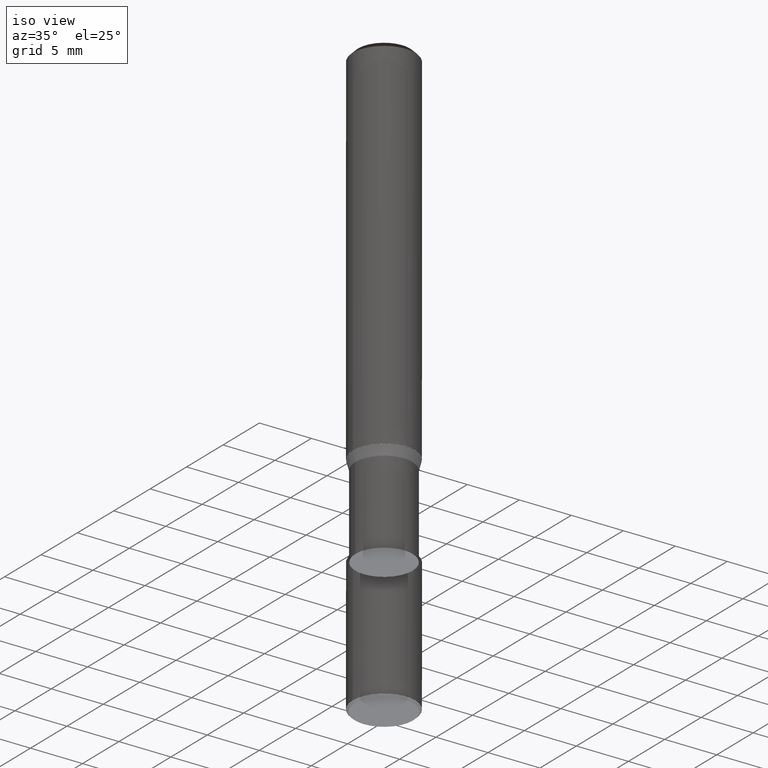
[diagram: clean part render]
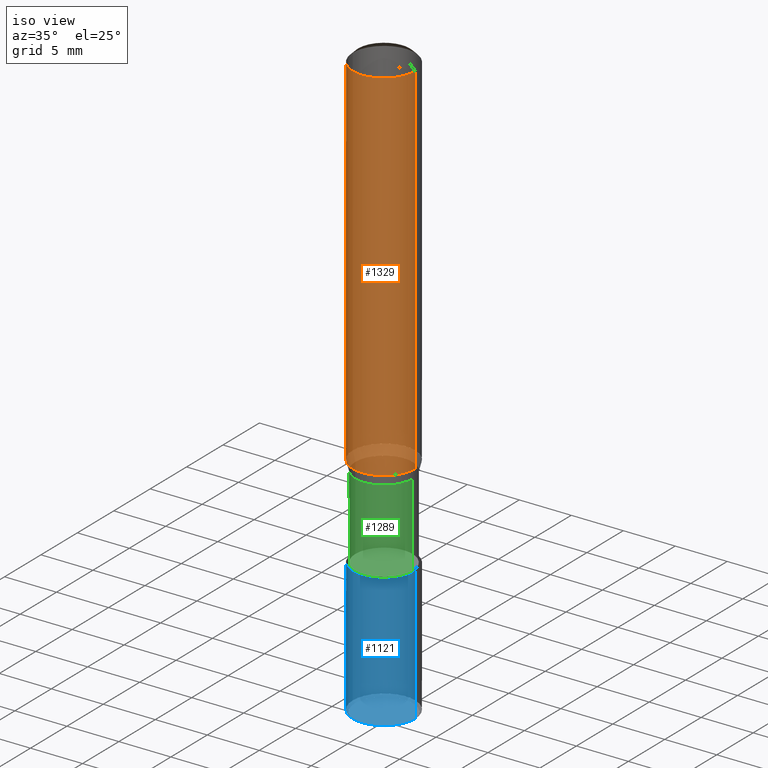
[diagram: same view with three faces highlighted in distinct colors, each labeled with its STEP entity id]
A machine part, iso view with three faces highlighted in distinct colors.
Their STEP definitions:

[orange] entity #1329 — the highlighted face is a freeform B-spline surface patch.
#956=CARTESIAN_POINT('',(3.0,0.0,0.0));
#960=CARTESIAN_POINT('',(-3.0,0.0,0.0));
#961=CARTESIAN_POINT('',(3.0,0.0,34.56699011));
#965=CARTESIAN_POINT('',(-3.0,0.0,34.56699011));
#978=CARTESIAN_POINT('',(-3.0,-3.0,0.0));
#979=CARTESIAN_POINT('',(0.0,-3.0,0.0));
#980=CARTESIAN_POINT('',(3.0,-3.0,0.0));
#981=CARTESIAN_POINT('',(-3.0,-3.0,34.56699011));
#982=CARTESIAN_POINT('',(0.0,-3.0,34.56699011));
#983=CARTESIAN_POINT('',(3.0,-3.0,34.56699011));
#1310=(
BOUNDED_SURFACE()
B_SPLINE_SURFACE(1,2,(
(#960,#978,#979,#980,#956),
(#965,#981,#982,#983,#961)
), .UNSPECIFIED.,.F.,.F.,.F.)
B_SPLINE_SURFACE_WITH_KNOTS((2,2),(3,2,3),(
0.0,1.0),(
0.0,0.5,1.0), .UNSPECIFIED.)
GEOMETRIC_REPRESENTATION_ITEM()
RATIONAL_B_SPLINE_SURFACE(((1.0,0.707106781187,1.0,0.707106781187,1.0),
(1.0,0.707106781187,1.0,0.707106781187,1.0)
))
REPRESENTATION_ITEM('')
SURFACE()
);
#1311=(
BOUNDED_CURVE()
B_SPLINE_CURVE(1,(#965,#960),.UNSPECIFIED.,.F.,.F.)
B_SPLINE_CURVE_WITH_KNOTS((2,2),
(0.0,1.0),.UNSPECIFIED.)
CURVE()
GEOMETRIC_REPRESENTATION_ITEM()
RATIONAL_B_SPLINE_CURVE((1.0,1.0))
REPRESENTATION_ITEM('')
);
#1312=(
BOUNDED_CURVE()
B_SPLINE_CURVE(2,(#960,#978,#979,#980,#956),.UNSPECIFIED.,.F.,.F.)
B_SPLINE_CURVE_WITH_KNOTS((3,2,3),
(0.0,0.5,1.0),.UNSPECIFIED.)
CURVE()
GEOMETRIC_REPRESENTATION_ITEM()
RATIONAL_B_SPLINE_CURVE((1.0,0.707106781187,1.0,0.707106781187,1.0))
REPRESENTATION_ITEM('')
);
#1313=(
BOUNDED_CURVE()
B_SPLINE_CURVE(1,(#956,#961),.UNSPECIFIED.,.F.,.F.)
B_SPLINE_CURVE_WITH_KNOTS((2,2),
(0.0,1.0),.UNSPECIFIED.)
CURVE()
GEOMETRIC_REPRESENTATION_ITEM()
RATIONAL_B_SPLINE_CURVE((1.0,1.0))
REPRESENTATION_ITEM('')
);
#1314=(
BOUNDED_CURVE()
B_SPLINE_CURVE(2,(#961,#983,#982,#981,#965),.UNSPECIFIED.,.F.,.F.)
B_SPLINE_CURVE_WITH_KNOTS((3,2,3),
(0.0,0.5,1.0),.UNSPECIFIED.)
CURVE()
GEOMETRIC_REPRESENTATION_ITEM()
RATIONAL_B_SPLINE_CURVE((1.0,0.707106781187,1.0,0.707106781187,1.0))
REPRESENTATION_ITEM('')
);
#1315=VERTEX_POINT('',#956);
#1316=VERTEX_POINT('',#960);
#1317=VERTEX_POINT('',#961);
#1318=VERTEX_POINT('',#965);
#1319=EDGE_CURVE('',#1318,#1316,#1311,.T.);
#1320=EDGE_CURVE('',#1316,#1315,#1312,.T.);
#1321=EDGE_CURVE('',#1315,#1317,#1313,.T.);
#1322=EDGE_CURVE('',#1317,#1318,#1314,.T.);
#1323=ORIENTED_EDGE('',*,*,#1319,.T.);
#1324=ORIENTED_EDGE('',*,*,#1320,.T.);
#1325=ORIENTED_EDGE('',*,*,#1321,.T.);
#1326=ORIENTED_EDGE('',*,*,#1322,.T.);
#1327=EDGE_LOOP('',(#1323,#1324,#1325,#1326));
#1328=FACE_OUTER_BOUND('',#1327,.T.);
#1329=ADVANCED_FACE('',(#1328),#1310,.T.);

[blue] entity #1121 — the highlighted face is a freeform B-spline surface patch.
#926=CARTESIAN_POINT('',(3.0,0.0,-21.73300989));
#930=CARTESIAN_POINT('',(-3.0,0.0,-21.73300989));
#931=CARTESIAN_POINT('',(3.0,0.0,-8.93300989));
#935=CARTESIAN_POINT('',(-3.0,0.0,-8.93300989));
#940=CARTESIAN_POINT('',(-3.0,-3.0,-21.73300989));
#941=CARTESIAN_POINT('',(0.0,-3.0,-21.73300989));
#942=CARTESIAN_POINT('',(3.0,-3.0,-21.73300989));
#943=CARTESIAN_POINT('',(-3.0,-3.0,-8.93300989));
#944=CARTESIAN_POINT('',(0.0,-3.0,-8.93300989));
#945=CARTESIAN_POINT('',(3.0,-3.0,-8.93300989));
#1102=(
BOUNDED_SURFACE()
B_SPLINE_SURFACE(1,2,(
(#930,#940,#941,#942,#926),
(#935,#943,#944,#945,#931)
), .UNSPECIFIED.,.F.,.F.,.F.)
B_SPLINE_SURFACE_WITH_KNOTS((2,2),(3,2,3),(
0.0,1.0),(
0.0,0.5,1.0), .UNSPECIFIED.)
GEOMETRIC_REPRESENTATION_ITEM()
RATIONAL_B_SPLINE_SURFACE(((1.0,0.707106781187,1.0,0.707106781187,1.0),
(1.0,0.707106781187,1.0,0.707106781187,1.0)
))
REPRESENTATION_ITEM('')
SURFACE()
);
#1103=(
BOUNDED_CURVE()
B_SPLINE_CURVE(1,(#935,#930),.UNSPECIFIED.,.F.,.F.)
B_SPLINE_CURVE_WITH_KNOTS((2,2),
(0.0,1.0),.UNSPECIFIED.)
CURVE()
GEOMETRIC_REPRESENTATION_ITEM()
RATIONAL_B_SPLINE_CURVE((1.0,1.0))
REPRESENTATION_ITEM('')
);
#1104=(
BOUNDED_CURVE()
B_SPLINE_CURVE(2,(#930,#940,#941,#942,#926),.UNSPECIFIED.,.F.,.F.)
B_SPLINE_CURVE_WITH_KNOTS((3,2,3),
(0.0,0.5,1.0),.UNSPECIFIED.)
CURVE()
GEOMETRIC_REPRESENTATION_ITEM()
RATIONAL_B_SPLINE_CURVE((1.0,0.707106781187,1.0,0.707106781187,1.0))
REPRESENTATION_ITEM('')
);
#1105=(
BOUNDED_CURVE()
B_SPLINE_CURVE(1,(#926,#931),.UNSPECIFIED.,.F.,.F.)
B_SPLINE_CURVE_WITH_KNOTS((2,2),
(0.0,1.0),.UNSPECIFIED.)
CURVE()
GEOMETRIC_REPRESENTATION_ITEM()
RATIONAL_B_SPLINE_CURVE((1.0,1.0))
REPRESENTATION_ITEM('')
);
#1106=(
BOUNDED_CURVE()
B_SPLINE_CURVE(2,(#931,#945,#944,#943,#935),.UNSPECIFIED.,.F.,.F.)
B_SPLINE_CURVE_WITH_KNOTS((3,2,3),
(0.0,0.5,1.0),.UNSPECIFIED.)
CURVE()
GEOMETRIC_REPRESENTATION_ITEM()
RATIONAL_B_SPLINE_CURVE((1.0,0.707106781187,1.0,0.707106781187,1.0))
REPRESENTATION_ITEM('')
);
#1107=VERTEX_POINT('',#926);
#1108=VERTEX_POINT('',#930);
#1109=VERTEX_POINT('',#931);
#1110=VERTEX_POINT('',#935);
#1111=EDGE_CURVE('',#1110,#1108,#1103,.T.);
#1112=EDGE_CURVE('',#1108,#1107,#1104,.T.);
#1113=EDGE_CURVE('',#1107,#1109,#1105,.T.);
#1114=EDGE_CURVE('',#1109,#1110,#1106,.T.);
#1115=ORIENTED_EDGE('',*,*,#1111,.T.);
#1116=ORIENTED_EDGE('',*,*,#1112,.T.);
#1117=ORIENTED_EDGE('',*,*,#1113,.T.);
#1118=ORIENTED_EDGE('',*,*,#1114,.T.);
#1119=EDGE_LOOP('',(#1115,#1116,#1117,#1118));
#1120=FACE_OUTER_BOUND('',#1119,.T.);
#1121=ADVANCED_FACE('',(#1120),#1102,.T.);

[green] entity #1289 — the highlighted face is a freeform B-spline surface patch.
#946=CARTESIAN_POINT('',(2.75,0.0,-8.93300989));
#950=CARTESIAN_POINT('',(-2.75,0.0,-8.93300989));
#951=CARTESIAN_POINT('',(2.75,0.0,-0.93300989));
#955=CARTESIAN_POINT('',(-2.75,0.0,-0.93300989));
#972=CARTESIAN_POINT('',(-2.75,-2.75,-8.93300989));
#973=CARTESIAN_POINT('',(0.0,-2.75,-8.93300989));
#974=CARTESIAN_POINT('',(2.75,-2.75,-8.93300989));
#975=CARTESIAN_POINT('',(-2.75,-2.75,-0.93300989));
#976=CARTESIAN_POINT('',(0.0,-2.75,-0.93300989));
#977=CARTESIAN_POINT('',(2.75,-2.75,-0.93300989));
#1270=(
BOUNDED_SURFACE()
B_SPLINE_SURFACE(1,2,(
(#950,#972,#973,#974,#946),
(#955,#975,#976,#977,#951)
), .UNSPECIFIED.,.F.,.F.,.F.)
B_SPLINE_SURFACE_WITH_KNOTS((2,2),(3,2,3),(
0.0,1.0),(
0.0,0.5,1.0), .UNSPECIFIED.)
GEOMETRIC_REPRESENTATION_ITEM()
RATIONAL_B_SPLINE_SURFACE(((1.0,0.707106781187,1.0,0.707106781187,1.0),
(1.0,0.707106781187,1.0,0.707106781187,1.0)
))
REPRESENTATION_ITEM('')
SURFACE()
);
#1271=(
BOUNDED_CURVE()
B_SPLINE_CURVE(1,(#955,#950),.UNSPECIFIED.,.F.,.F.)
B_SPLINE_CURVE_WITH_KNOTS((2,2),
(0.0,1.0),.UNSPECIFIED.)
CURVE()
GEOMETRIC_REPRESENTATION_ITEM()
RATIONAL_B_SPLINE_CURVE((1.0,1.0))
REPRESENTATION_ITEM('')
);
#1272=(
BOUNDED_CURVE()
B_SPLINE_CURVE(2,(#950,#972,#973,#974,#946),.UNSPECIFIED.,.F.,.F.)
B_SPLINE_CURVE_WITH_KNOTS((3,2,3),
(0.0,0.5,1.0),.UNSPECIFIED.)
CURVE()
GEOMETRIC_REPRESENTATION_ITEM()
RATIONAL_B_SPLINE_CURVE((1.0,0.707106781187,1.0,0.707106781187,1.0))
REPRESENTATION_ITEM('')
);
#1273=(
BOUNDED_CURVE()
B_SPLINE_CURVE(1,(#946,#951),.UNSPECIFIED.,.F.,.F.)
B_SPLINE_CURVE_WITH_KNOTS((2,2),
(0.0,1.0),.UNSPECIFIED.)
CURVE()
GEOMETRIC_REPRESENTATION_ITEM()
RATIONAL_B_SPLINE_CURVE((1.0,1.0))
REPRESENTATION_ITEM('')
);
#1274=(
BOUNDED_CURVE()
B_SPLINE_CURVE(2,(#951,#977,#976,#975,#955),.UNSPECIFIED.,.F.,.F.)
B_SPLINE_CURVE_WITH_KNOTS((3,2,3),
(0.0,0.5,1.0),.UNSPECIFIED.)
CURVE()
GEOMETRIC_REPRESENTATION_ITEM()
RATIONAL_B_SPLINE_CURVE((1.0,0.707106781187,1.0,0.707106781187,1.0))
REPRESENTATION_ITEM('')
);
#1275=VERTEX_POINT('',#946);
#1276=VERTEX_POINT('',#950);
#1277=VERTEX_POINT('',#951);
#1278=VERTEX_POINT('',#955);
#1279=EDGE_CURVE('',#1278,#1276,#1271,.T.);
#1280=EDGE_CURVE('',#1276,#1275,#1272,.T.);
#1281=EDGE_CURVE('',#1275,#1277,#1273,.T.);
#1282=EDGE_CURVE('',#1277,#1278,#1274,.T.);
#1283=ORIENTED_EDGE('',*,*,#1279,.T.);
#1284=ORIENTED_EDGE('',*,*,#1280,.T.);
#1285=ORIENTED_EDGE('',*,*,#1281,.T.);
#1286=ORIENTED_EDGE('',*,*,#1282,.T.);
#1287=EDGE_LOOP('',(#1283,#1284,#1285,#1286));
#1288=FACE_OUTER_BOUND('',#1287,.T.);
#1289=ADVANCED_FACE('',(#1288),#1270,.T.);